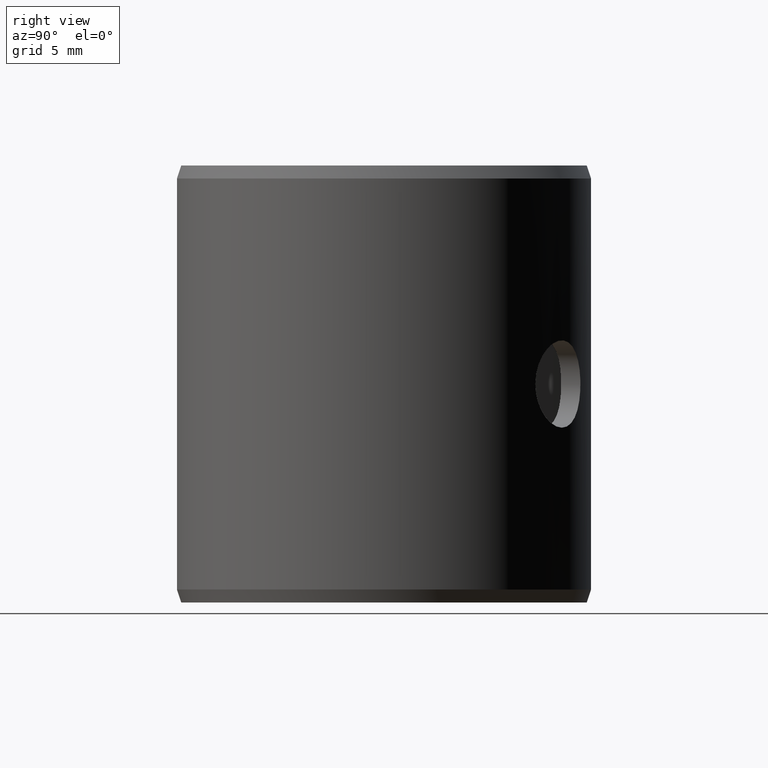
[diagram: clean part render]
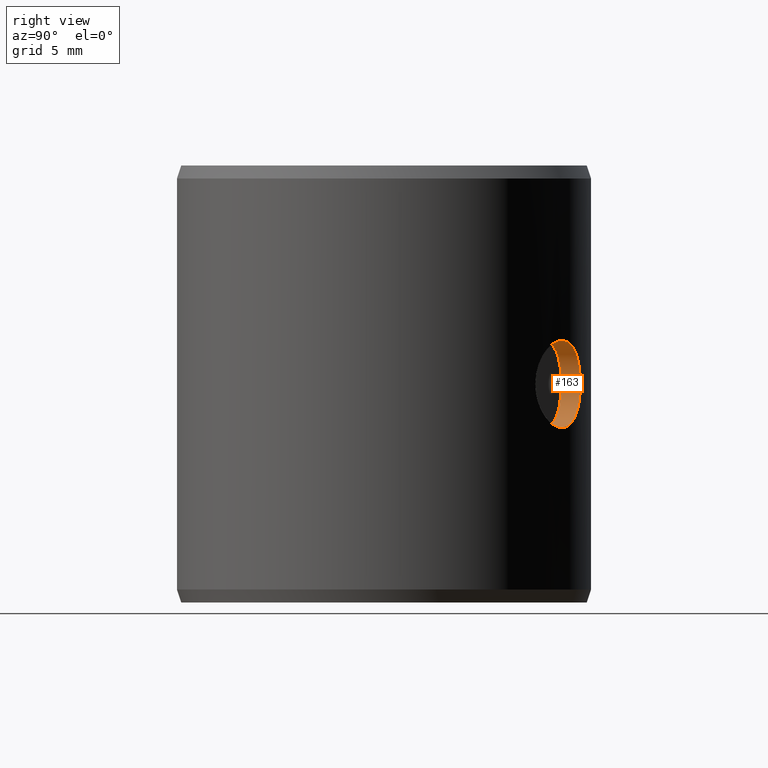
[diagram: same view with one face highlighted and labeled with its STEP entity id]
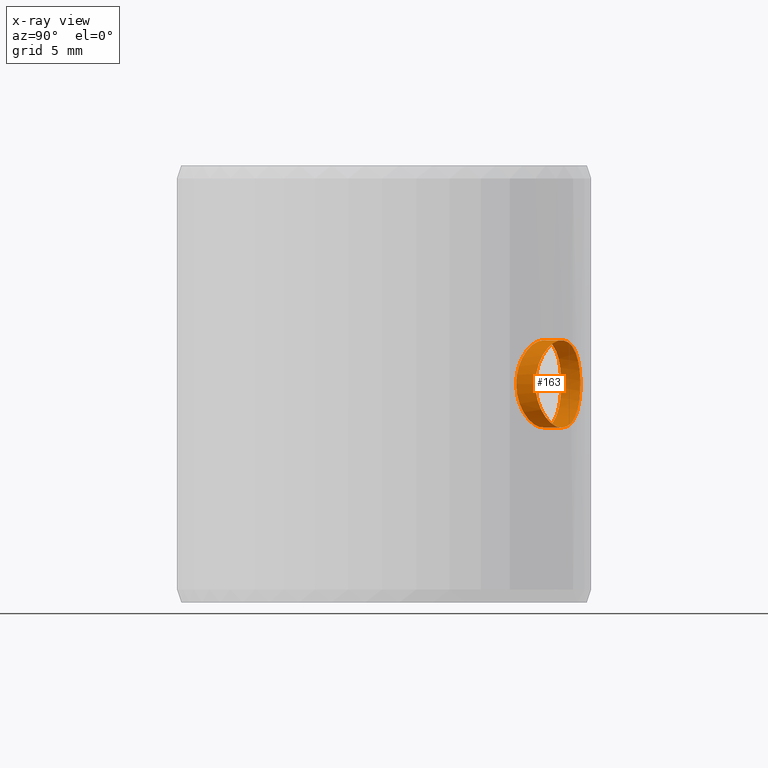
[diagram: x-ray of the same camera — body ghosted, the highlighted face saturated]
A machine part, right view. The second image highlights one B-rep face of the part: STEP entity #163.
The next image is the same camera in x-ray: the body ghosted, the highlighted face saturated — about 0% of this face is hidden behind the body in this view.
In plain terms, the highlighted cylindrical surface (bore or boss wall) has radius 2 mm, axis along (0.515, 0.8572, 0).
Its self-contained STEP definition (entity closure, byte-faithful):
#163=ADVANCED_FACE('',(#188,#189),#190,.F.);
#188=FACE_OUTER_BOUND('',#214,.T.);
#189=FACE_OUTER_BOUND('',#215,.T.);
#190=CYLINDRICAL_SURFACE('',#216,0.002);
#214=EDGE_LOOP('',(#297));
#215=EDGE_LOOP('',(#298));
#216=AXIS2_PLACEMENT_3D('',#299,#300,#301);
#297=ORIENTED_EDGE('',*,*,#326,.F.);
#298=ORIENTED_EDGE('',*,*,#327,.F.);
#299=CARTESIAN_POINT('',(0.00385725285316759,-0.00231767133708176,0.01));
#300=DIRECTION('',(0.857167300703911,-0.515038074907061,0.0));
#301=DIRECTION('',(-0.515038074907061,-0.857167300703911,0.0));
#326=EDGE_CURVE('',#368,#368,#369,.T.);
#327=EDGE_CURVE('',#370,#370,#371,.T.);
#368=VERTEX_POINT('',#428);
#369=B_SPLINE_CURVE_WITH_KNOTS('',3,(#429,#430,#431,#432,#433,#434,#435,#436,#437,#438,#439,#440,#441,#442,#443,#444,#445,#446,#447,#448,#449,#450,#451,#452,#453,#454,#455,#456,#457,#458,#459,#460,#461,#462,#463,#464,#465,#466,#467,#468,#469,#470,#471,#472,#473,#474,#475,#476,#477,#478,#479,#480,#481,#482),.UNSPECIFIED.,.T.,.F.,(2,2,2,2,2,2,2,2,2,2,2,2,2,2,2,2,2,2,2,2,2,2,2,2,2,2,2,2,2),(-0.000392130648972248,0.0,0.000392130648972245,0.00078426129794449,0.00117639194691674,0.00156852259588898,0.00235278389383347,0.00274491454280572,0.00313704519177797,0.00352917584075021,0.00392130648972246,0.00470556778766696,0.00509769843663921,0.00548982908561146,0.00588195973458371,0.00627409038355596,0.00705835168150045,0.0074504823304727,0.00784261297944495,0.00823474362841719,0.00862687427738944,0.00941113557533394,0.00980326622430618,0.0101953968732784,0.0109796581712229,0.0117639194691674,0.0121560501181396,0.0125481807671119,0.0129403114160841),.UNSPECIFIED.);
#370=VERTEX_POINT('',#483);
#371=B_SPLINE_CURVE_WITH_KNOTS('',3,(#484,#485,#486,#487,#488,#489,#490,#491,#492,#493,#494,#495,#496,#497,#498,#499,#500,#501,#502,#503,#504,#505,#506,#507,#508,#509,#510,#511,#512,#513,#514,#515,#516,#517,#518,#519,#520,#521,#522,#523,#524,#525,#526,#527,#528,#529,#530,#531,#532,#533,#534,#535,#536,#537),.UNSPECIFIED.,.T.,.F.,(2,2,2,2,2,2,2,2,2,2,2,2,2,2,2,2,2,2,2,2,2,2,2,2,2,2,2,2,2),(-0.000391852452461565,0.0,0.000391852452461561,0.000783704904923122,0.00117555735738468,0.00156740980984624,0.00235111471476937,0.00313481961969249,0.00352667207215406,0.00391852452461562,0.00470222942953875,0.00509408188200031,0.00548593433446188,0.00587778678692344,0.00626963923938501,0.00705334414430814,0.00744519659676971,0.00783704904923128,0.00822890150169284,0.00862075395415441,0.00940445885907754,0.00979631131153911,0.0101881637640007,0.0105800162164622,0.0109718686689238,0.0117555735738469,0.0121474260263085,0.0125392784787701,0.0129311309312316),.UNSPECIFIED.);
#428=CARTESIAN_POINT('',(0.00605128791936626,-0.00596924739954141,0.01));
#429=CARTESIAN_POINT('',(0.00605128791936626,-0.00596924739954141,0.0101326300495121));
#430=CARTESIAN_POINT('',(0.00605128791936626,-0.00596924739954141,0.00986736995048787));
#431=CARTESIAN_POINT('',(0.00606075190660702,-0.00595969592197073,0.00973705282044995));
#432=CARTESIAN_POINT('',(0.00609744831417399,-0.00592214599716792,0.00948082440571805));
#433=CARTESIAN_POINT('',(0.00612514232217834,-0.00589366470314775,0.00935355674978138));
#434=CARTESIAN_POINT('',(0.00619610537298328,-0.00581901454775272,0.00911160176056763));
#435=CARTESIAN_POINT('',(0.0062390887029513,-0.00577314868125431,0.00899691967197587));
#436=CARTESIAN_POINT('',(0.00633863395333815,-0.00566367311422116,0.00877987948968845));
#437=CARTESIAN_POINT('',(0.00639548726638319,-0.00559968107463609,0.00867749526455098));
#438=CARTESIAN_POINT('',(0.00657734775952636,-0.00538732201549916,0.00840186802131529));
#439=CARTESIAN_POINT('',(0.00671838971299242,-0.00521263239489055,0.00825300273933793));
#440=CARTESIAN_POINT('',(0.00693218753002888,-0.004920299813374,0.00810313160861428));
#441=CARTESIAN_POINT('',(0.00700493940434094,-0.00481638344888828,0.00806446565475928));
#442=CARTESIAN_POINT('',(0.00714822547711601,-0.00460104315492944,0.00801289733189056));
#443=CARTESIAN_POINT('',(0.00721782900167535,-0.00449111263303328,0.00800008072019332));
#444=CARTESIAN_POINT('',(0.00735275097206848,-0.00426663817574948,0.00799992003267006));
#445=CARTESIAN_POINT('',(0.00741861539795898,-0.00415098502388569,0.00801301770499162));
#446=CARTESIAN_POINT('',(0.00754077046746997,-0.00392470531993042,0.00806425435075001));
#447=CARTESIAN_POINT('',(0.00759766854837766,-0.0038131724129343,0.00810215849750155));
#448=CARTESIAN_POINT('',(0.00775696045338443,-0.0034841023824956,0.00825310800139503));
#449=CARTESIAN_POINT('',(0.00784399861340388,-0.00327979713696828,0.00840022399141423));
#450=CARTESIAN_POINT('',(0.0079470587852551,-0.00301713482303766,0.0086784074184219));
#451=CARTESIAN_POINT('',(0.00797624678715302,-0.00293852627045677,0.00877886610276999));
#452=CARTESIAN_POINT('',(0.00802608056325134,-0.00279955000739983,0.00899502354069977));
#453=CARTESIAN_POINT('',(0.00804685953460417,-0.00273873887146016,0.00911213376785764));
#454=CARTESIAN_POINT('',(0.00807937443150176,-0.0026412776778091,0.00935359348332474));
#455=CARTESIAN_POINT('',(0.00809131926333239,-0.00260408433149366,0.00947825558169333));
#456=CARTESIAN_POINT('',(0.00810740331793531,-0.00255356888824957,0.0097356042546279));
#457=CARTESIAN_POINT('',(0.00811142319829333,-0.00254063253962684,0.00986837707381594));
#458=CARTESIAN_POINT('',(0.00811147409621693,-0.00254047003510961,0.0102607147483269));
#459=CARTESIAN_POINT('',(0.00809567274230487,-0.00259240089416434,0.0105247844613286));
#460=CARTESIAN_POINT('',(0.00804713415096325,-0.00273792747220254,0.0108861185974771));
#461=CARTESIAN_POINT('',(0.00802647047096328,-0.0027984387928087,0.0110030635266799));
#462=CARTESIAN_POINT('',(0.00797647626886923,-0.00293790984043214,0.011220357457772));
#463=CARTESIAN_POINT('',(0.00794729496336893,-0.00301649322855567,0.0113207515708125));
#464=CARTESIAN_POINT('',(0.00787907180972562,-0.00319044762531819,0.0115053059568984));
#465=CARTESIAN_POINT('',(0.00783976845579477,-0.00328632224273839,0.0115894774653465));
#466=CARTESIAN_POINT('',(0.00775291110746127,-0.00348629497940086,0.0117342092200346));
#467=CARTESIAN_POINT('',(0.00770503478889729,-0.00359128573447079,0.0117958664316531));
#468=CARTESIAN_POINT('',(0.00754561231562008,-0.00392088154389879,0.0119476277416594));
#469=CARTESIAN_POINT('',(0.00742242211414251,-0.00415057979009107,0.0119998476506563));
#470=CARTESIAN_POINT('',(0.00721856185374282,-0.00448996441214126,0.0120000756770734));
#471=CARTESIAN_POINT('',(0.00714891567381471,-0.00459994764156631,0.0119872159980365));
#472=CARTESIAN_POINT('',(0.00700659373539046,-0.00481395449123197,0.0119362625986542));
#473=CARTESIAN_POINT('',(0.00693324822811895,-0.00491881662942581,0.0118975198552577));
#474=CARTESIAN_POINT('',(0.00671866388634905,-0.00521232267696378,0.0117473720809414));
#475=CARTESIAN_POINT('',(0.00657778929067078,-0.00538678126779979,0.0115986315827459));
#476=CARTESIAN_POINT('',(0.00633539512267365,-0.0056698759262602,0.0112315981564984));
#477=CARTESIAN_POINT('',(0.00623176316324189,-0.00578149332449594,0.0110094708025118));
#478=CARTESIAN_POINT('',(0.00612568448866985,-0.00589309968024061,0.0106485425276252));
#479=CARTESIAN_POINT('',(0.00609781151106953,-0.00592177317827132,0.0105212769448927));
#480=CARTESIAN_POINT('',(0.00606075480178775,-0.00595969412235498,0.0102633977448249));
#481=CARTESIAN_POINT('',(0.00605128791936626,-0.00596924739954141,0.0101326300495121));
#482=CARTESIAN_POINT('',(0.00605128791936626,-0.00596924739954141,0.00986736995048787));
#483=CARTESIAN_POINT('',(0.00693051184011523,-0.0064975384288223,0.01));
#484=CARTESIAN_POINT('',(0.00693051184011523,-0.0064975384288223,0.00986747197383627));
#485=CARTESIAN_POINT('',(0.00693051184011523,-0.0064975384288223,0.0101325280261637));
#486=CARTESIAN_POINT('',(0.00693965947307551,-0.00648781984651581,0.0102627650262338));
#487=CARTESIAN_POINT('',(0.00697517085709909,-0.00644962568505853,0.0105188685243488));
#488=CARTESIAN_POINT('',(0.00700197821050363,-0.00642066396758142,0.0106460868916847));
#489=CARTESIAN_POINT('',(0.00707081923908754,-0.00634477264629044,0.0108880941125723));
#490=CARTESIAN_POINT('',(0.00711256219515783,-0.00629816561039437,0.0110028160734398));
#491=CARTESIAN_POINT('',(0.00720941545968105,-0.00618706390508895,0.0112199313800372));
#492=CARTESIAN_POINT('',(0.00726485477571485,-0.00612213486895014,0.0113224318581958));
#493=CARTESIAN_POINT('',(0.00744255937301844,-0.00590702218063076,0.0115982787885771));
#494=CARTESIAN_POINT('',(0.00758086515715347,-0.00573050618940514,0.0117471747498667));
#495=CARTESIAN_POINT('',(0.0078619931912159,-0.00533828444156256,0.0119469283940262));
#496=CARTESIAN_POINT('',(0.00800766637029049,-0.00511817926001047,0.0119998430631292));
#497=CARTESIAN_POINT('',(0.008209876240228,-0.00478174152678815,0.0120000779314086));
#498=CARTESIAN_POINT('',(0.0082759682963261,-0.00466635428618872,0.0119870042453549));
#499=CARTESIAN_POINT('',(0.00839915934526417,-0.00444079225576789,0.0119358150613746));
#500=CARTESIAN_POINT('',(0.00845682151473784,-0.00432977841549644,0.0118979450016566));
#501=CARTESIAN_POINT('',(0.0086190335495459,-0.00400268731098612,0.0117471641625184));
#502=CARTESIAN_POINT('',(0.00870892223830596,-0.003799996797842,0.0116001746886153));
#503=CARTESIAN_POINT('',(0.00881650348936553,-0.00353950445346843,0.0113215690100936));
#504=CARTESIAN_POINT('',(0.00884715050343477,-0.00346169548016791,0.0112210005464081));
#505=CARTESIAN_POINT('',(0.00889967898097455,-0.00332432273755736,0.0110047761795134));
#506=CARTESIAN_POINT('',(0.00892171497076126,-0.00326429421788798,0.0108876865153448));
#507=CARTESIAN_POINT('',(0.00895633779999028,-0.00316806375770874,0.0106460546887893));
#508=CARTESIAN_POINT('',(0.00896910980419053,-0.00313141533498089,0.0105213976830365));
#509=CARTESIAN_POINT('',(0.00898632254698897,-0.0030816715855616,0.0102642975295393));
#510=CARTESIAN_POINT('',(0.00899064630720199,-0.00306892146882635,0.0101315415657615));
#511=CARTESIAN_POINT('',(0.00899069963692882,-0.00306876523224581,0.00973938610935915));
#512=CARTESIAN_POINT('',(0.00897366723780552,-0.00311987802451007,0.00947549098794162));
#513=CARTESIAN_POINT('',(0.00892203266310983,-0.00326342133413272,0.00911423151552944));
#514=CARTESIAN_POINT('',(0.00890014659047418,-0.00332307804370945,0.00899738504053961));
#515=CARTESIAN_POINT('',(0.00884739323041866,-0.00346108220689064,0.00877976536995678));
#516=CARTESIAN_POINT('',(0.00881675370175772,-0.00353886000098294,0.00867930581921162));
#517=CARTESIAN_POINT('',(0.00874567039071152,-0.00371105448101308,0.00849476961198881));
#518=CARTESIAN_POINT('',(0.00870487016792467,-0.00380619267191541,0.00841046922694812));
#519=CARTESIAN_POINT('',(0.00861530095676472,-0.0040048042050188,0.00826561567215897));
#520=CARTESIAN_POINT('',(0.00856622581177279,-0.00410908837540219,0.00820399885073765));
#521=CARTESIAN_POINT('',(0.00840399817109215,-0.00443645607223503,0.00805246404177137));
#522=CARTESIAN_POINT('',(0.00827974914827835,-0.00466534951541785,0.00800017640969527));
#523=CARTESIAN_POINT('',(0.00807578894929588,-0.00500490418102953,0.00799991246121404));
#524=CARTESIAN_POINT('',(0.00800643990918429,-0.0051150161943353,0.00801277294630271));
#525=CARTESIAN_POINT('',(0.00786534290747539,-0.00532943258100878,0.00806363036566733));
#526=CARTESIAN_POINT('',(0.00779285101451661,-0.0054347179371777,0.00810229936098886));
#527=CARTESIAN_POINT('',(0.00765168295367995,-0.00563173454341531,0.0082024080657786));
#528=CARTESIAN_POINT('',(0.00758258354806712,-0.00572419906898464,0.00826374191573796));
#529=CARTESIAN_POINT('',(0.0074484135013093,-0.00589772537155606,0.0084091221489095));
#530=CARTESIAN_POINT('',(0.0073838307584166,-0.00597810086448106,0.00849297978322334));
#531=CARTESIAN_POINT('',(0.00720618232896779,-0.00619318356752531,0.00876845447673734));
#532=CARTESIAN_POINT('',(0.0071054116465865,-0.00630662707589931,0.0089908415016146));
#533=CARTESIAN_POINT('',(0.00700254629785347,-0.00642004285670251,0.0093516468581984));
#534=CARTESIAN_POINT('',(0.00697558815576132,-0.00644917559635491,0.00947863822709644));
#535=CARTESIAN_POINT('',(0.00693966192000337,-0.00648781846443567,0.00973670707969191));
#536=CARTESIAN_POINT('',(0.00693051184011523,-0.0064975384288223,0.00986747197383627));
#537=CARTESIAN_POINT('',(0.00693051184011523,-0.0064975384288223,0.0101325280261637));